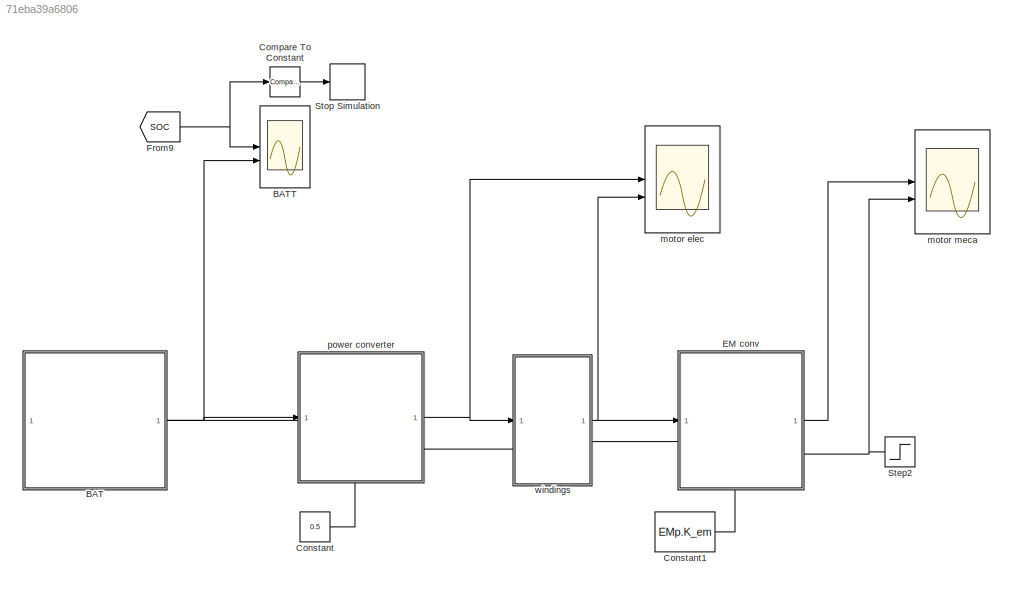
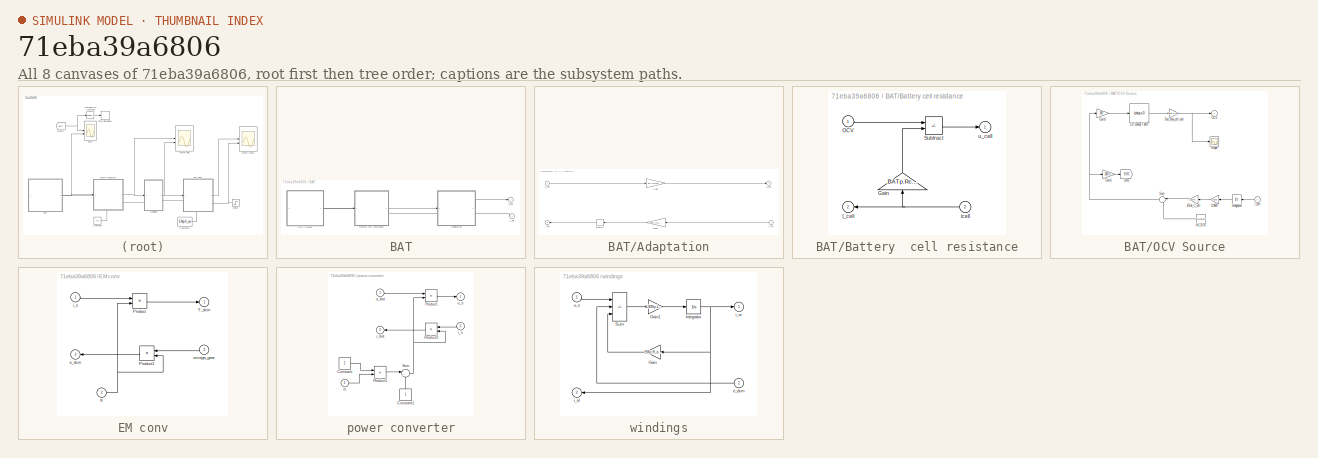
[diagram: thumbnail index - all 8 canvases of the model, root first then tree order]
MODEL slx_71eba39a6806
KIND model
CONFIG AbsTol = auto
CONFIG EnableMultiTasking = on
CONFIG FixedStep = 1e-2
CONFIG InitFcn = init_ev
CONFIG MaxStep = 1e-3
CONFIG MinStep = auto
CONFIG RelTol = 1e-3
CONFIG SampleTimeConstraint = Unconstrained
CONFIG SolverName = ode45
CONFIG StartTime = SIM.t_min
CONFIG StopTime = SIM.t_simul
BLOCK [SubSystem] BAT
  PortSchema = {"entries":[{"content":{"sides":[{"content":{"connectorIds":[]},"type":"ConnectorPlacement.EquallySpacedRectSide","uuid":"f966fbbf-87fd-4eae-ac75-d366ea856ba9"},{"content":{"connectorIds":["Out1","In1"],"side":"RIGHT"},"type":"ConnectorPlacement.EquallySpacedRectSide","uuid":"019a522f-a65b-4de4-928a-6ec503aa07e1"},{"content":{"connectorIds":[],"side":"TOP"},"type":"ConnectorPlacement.EquallySpaced...<+241ch>
BLOCK [SubSystem] BAT/Adaptation
  PortSchema = {"entries":[{"content":{"sides":[{"content":{"connectorIds":["In1","Out2"]},"type":"ConnectorPlacement.EquallySpacedRectSide","uuid":"43b53794-c784-4d35-8a91-f1490638489e"},{"content":{"connectorIds":["Out1","In2"],"side":"RIGHT"},"type":"ConnectorPlacement.EquallySpacedRectSide","uuid":"00b1a1a6-7269-4083-abb9-f1208d9f3b4c"},{"content":{"connectorIds":[],"side":"TOP"},"type":"ConnectorPlacement.E...<+253ch>
BLOCK [Gain] BAT/Adaptation/Gain
  Gain = BATp.ns
BLOCK [Gain] BAT/Adaptation/Gain1
  Gain = 1/BATp.np
  NameLocation = top
BLOCK [Inport] BAT/Adaptation/I_bat
  NameLocation = top
  Port = 2
BLOCK [Memory] BAT/Adaptation/Memory
BLOCK [Outport] BAT/Adaptation/i_cell
  InitialOutput = 0
  NameLocation = top
  Port = 2
BLOCK [Outport] BAT/Adaptation/u_bat
  InitialOutput = 0
BLOCK [Inport] BAT/Adaptation/u_cell
BLOCK [SubSystem] BAT/Battery  cell resistance
  PortSchema = {"entries":[{"content":{"sides":[{"content":{"connectorIds":["In1","Out2"]},"type":"ConnectorPlacement.EquallySpacedRectSide","uuid":"43b53794-c784-4d35-8a91-f1490638489e"},{"content":{"connectorIds":["Out1","In2"],"side":"RIGHT"},"type":"ConnectorPlacement.EquallySpacedRectSide","uuid":"00b1a1a6-7269-4083-abb9-f1208d9f3b4c"},{"content":{"connectorIds":[],"side":"TOP"},"type":"ConnectorPlacement.E...<+253ch>
BLOCK [Gain] BAT/Battery  cell resistance/Gain
  Gain = BATp.Rcell
  NameLocation = right
BLOCK [Outport] BAT/Battery  cell resistance/I_cell
  InitialOutput = 0
  NameLocation = top
  Port = 2
BLOCK [Inport] BAT/Battery  cell resistance/OCV
BLOCK [Sum] BAT/Battery  cell resistance/Subtract
  IconShape = rectangular
  Inputs = +-
BLOCK [Inport] BAT/Battery  cell resistance/icell
  NameLocation = top
  Port = 2
BLOCK [Outport] BAT/Battery  cell resistance/u_cell
  InitialOutput = 0
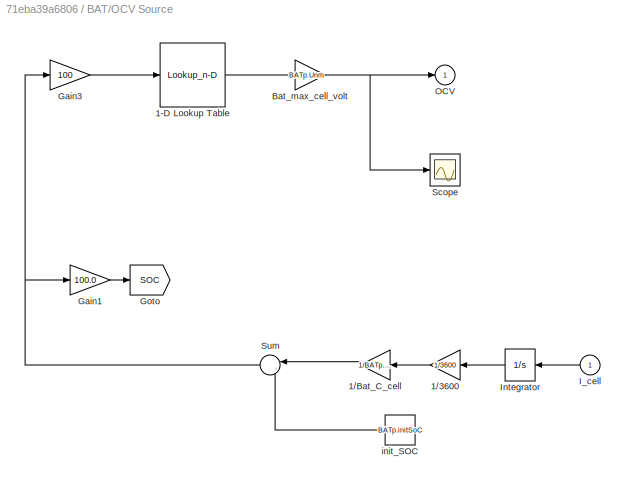
BLOCK [SubSystem] BAT/OCV Source
  PortSchema = {"entries":[{"content":{"sides":[{"content":{"connectorIds":[]},"type":"ConnectorPlacement.EquallySpacedRectSide","uuid":"87b7c904-bcc3-4a98-87e1-6b58a76e8897"},{"content":{"connectorIds":["Out1","In1"],"side":"RIGHT"},"type":"ConnectorPlacement.EquallySpacedRectSide","uuid":"67c0e4e9-ec6a-4f26-b099-e0fb0eaa0b35"},{"content":{"connectorIds":[],"side":"TOP"},"type":"ConnectorPlacement.EquallySpaced...<+241ch>
BLOCK [Lookup_n-D] BAT/OCV Source/1-D Lookup Table
  BreakpointsForDimension1 = BATp.SoC
  InputPortMap = u0
  InternalRulePriority = Speed
  NumberOfTableDimensions = 1
  RndMeth = Simplest
  Table = BATp.OCV
BLOCK [Gain] BAT/OCV Source/1//3600
  Gain = 1/3600
  NameLocation = top
BLOCK [Gain] BAT/OCV Source/1//Bat_C_cell
  Gain = 1/BATp.Ccell
  NameLocation = top
BLOCK [Gain] BAT/OCV Source/Bat_max_cell_volt
  Gain = BATp.Unm
  NameLocation = top
BLOCK [Gain] BAT/OCV Source/Gain1
  Gain = 100.0
BLOCK [Gain] BAT/OCV Source/Gain3
  Gain = 100
BLOCK [Goto] BAT/OCV Source/Goto
  GotoTag = SOC
  TagVisibility = global
BLOCK [Inport] BAT/OCV Source/I_cell 
  NameLocation = top
BLOCK [Integrator] BAT/OCV Source/Integrator
  NameLocation = top
BLOCK [Outport] BAT/OCV Source/OCV
  InitialOutput = 0
BLOCK [Scope] BAT/OCV Source/Scope
  ActiveDisplayYMaximum = 4.35082
  ActiveDisplayYMinimum = 2.54261
  DataLoggingVariableName = ScopeData1
  Floating = off
  GraphicalSettings = {"GraphicalSettings":{"LegacySettings":true,"Style":{"Style":{"AxesColor":"[0 0 0]","ChannelNames":[""],"ColorOrder":"[1 0.909803921568627 0.392156862745098;0.149019607843137 0.549019607843137 0.866666666666667;0.96078431372549 0.466666666666667 0.16078431372549;0.286274509803922 0.858823529411765 0.250980392156863;0.752941176470588 0.36078431372549 0.984313725490196;0.423529411764706 0.9568627450...<+457ch>
  MultipleDisplayCache = [{"MaxYLimMag":4.35082,"MaxYLimReal":4.35082,"MinYLimMag":2.54261,"MinYLimReal":2.54261,"PlotAsMagnitudePhase":false,"ShowGrid":true,"ShowLegend":false,"Title":"%<SignalLabel>","YLabel":""}]
  NumInputPorts = 1
  WasSavedAsWebScope = on
BLOCK [Sum] BAT/OCV Source/Sum
  Inputs = |-+
  NameLocation = top
BLOCK [Constant] BAT/OCV Source/init_SOC
  NameLocation = top
  Value = BATp.initSoC
BLOCK [Inport] BAT/i_bat
  NameLocation = top
BLOCK [Outport] BAT/u_bat
  InitialOutput = 0
  NameLocation = top
BLOCK [Scope] BATT
  ActiveDisplayYMaximum = 100.02634
  ActiveDisplayYMinimum = 99.76293
  DataLoggingDecimateData = on
  DataLoggingDecimation = 1
  DataLoggingSaveFormat = Structure With Time
  DataLoggingVariableName = ScopeData1
  Floating = off
  GraphicalSettings = {"GraphicalSettings":{"LegacySettings":true,"Style":{"AxesScalingProperties":{"ScaleAxesLimitsAtStop":false},"Style":{"AxesColor":"[0 0 0]","ChannelNames":["","",""],"ColorOrder":"[1 0.909803921568627 0.392156862745098;0.149019607843137 0.549019607843137 0.866666666666667;0.96078431372549 0.466666666666667 0.16078431372549;0.286274509803922 0.858823529411765 0.250980392156863;0.752941176470588 0.3...<+1784ch>
  LayoutDimensionsString = [3 1]
  MultipleDisplayCache = [{"MaxYLimMag":100.02634,"MaxYLimReal":100.02634,"MinYLimMag":99.76293,"MinYLimReal":99.76293,"PlotAsMagnitudePhase":false,"ShowGrid":true,"ShowLegend":false,"Title":"SOC","YLabel":""},{"MaxYLimMag":542.91708,"MaxYLimReal":400.45668411148597,"MinYLimMag":0,"MinYLimReal":400.11673334578154,"PlotAsMagnitudePhase":false,"ShowGrid":true,"ShowLegend":false,"Title":"Ubatt (V)","YLabel":""},{"MaxYLimMag"...<+169ch>
  NumInputPorts = 2
  ScopeFrameLocation = window
  Title = SOC
  WasSavedAsWebScope = on
  WindowPosition = [1.000000,1.000000,1920.000000,891.000000,]
BLOCK [Reference] Compare To Constant  REF=simulink/Logic and Bit
Operations/Compare
To Constant
  SourceBlock = simulink/Logic and Bit\nOperations/Compare\nTo Constant
  SourceType = Compare To Constant
BLOCK [Constant] Constant
  Value = 0.5
BLOCK [Constant] Constant1
  Value = EMp.K_em
BLOCK [SubSystem] EM conv
  NameLocation = top
  PortSchema = {"entries":[{"content":{"sides":[{"content":{"connectorIds":["In1","Out2"]},"type":"ConnectorPlacement.EquallySpacedRectSide","uuid":"61fbc010-38ff-4a80-98f4-f5d8a9e77fd8"},{"content":{"connectorIds":["Out1","In3"],"side":"RIGHT"},"type":"ConnectorPlacement.EquallySpacedRectSide","uuid":"7ae9e15d-ee0f-4ba6-b3b7-5dcbca441e0a"},{"content":{"connectorIds":[],"side":"TOP"},"type":"ConnectorPlacement.E...<+402ch>
BLOCK [Inport] EM conv/K
  Port = 2
BLOCK [Product] EM conv/Product
BLOCK [Product] EM conv/Product1
BLOCK [Outport] EM conv/T_dcm
  InitialOutput = 0
BLOCK [Outport] EM conv/e_dcm
  InitialOutput = 0
  Port = 2
BLOCK [Inport] EM conv/i_s
BLOCK [Inport] EM conv/omega_gear
  Port = 3
BLOCK [From] From9
  GotoTag = SOC
  TagVisibility = global
BLOCK [Step] Step2
  After = 400*2*pi/60
  Before = 500*2*pi/60
  NameLocation = top
  SampleTime = 0
  Time = 75
BLOCK [Stop] Stop Simulation
BLOCK [Scope] motor elec
  ActiveDisplayYMaximum = 0.23301388415574203
  ActiveDisplayYMinimum = -0.080060453705717141
  Floating = off
  GraphicalSettings = {"Style":{"BackgroundColor":[0.12941176470588237,0.12941176470588237,0.12941176470588237],"AxesColor":[0.07058823529411765,0.07058823529411765,0.07058823529411765],"LabelsColor":[0.8509803921568627,0.8509803921568627,0.8509803921568627],"PreserveColors":false,"Visible":[true,true],"LineStyle":["-","-"],"LineWidth":[1.5,1.5],"BarWidth":[0.9,0.9],"LineColor":["auto","auto"],"LineFaceAlpha":[1,1],"Li...<+2429ch>
  LayoutDimensionsString = [2,1]
  MultipleDisplayCache = [{"MaxYLimMag":10,"MaxYLimReal":0.23301388415574203,"MinYLimMag":0,"MinYLimReal":-0.080060453705717141,"PlotAsMagnitudePhase":false,"ShowGrid":true,"ShowLegend":false,"Title":"%<SignalLabel>","YLabel":"u_s (V)"},{"MaxYLimMag":10,"MaxYLimReal":12.04932897469746,"MinYLimMag":0,"MinYLimReal":-1507.2728582341026,"PlotAsMagnitudePhase":false,"ShowGrid":true,"ShowLegend":false,"Title":"%<SignalLabel>","...<+19ch>
  NumInputPorts = 2
  ScopeFrameLocation = window
  ShowTimeAxisLabel = on
  TimeUnits = Seconds
  WasSavedAsWebScope = on
  WindowPosition = [126.000000,141.000000,805.000000,656.000000,]
  YLabel = u_s (V)
BLOCK [Scope] motor meca
  ActiveDisplayString = 2
  ActiveDisplayYMaximum = 230.58226400155891
  ActiveDisplayYMinimum = -227.26848450092217
  DataLoggingVariableName = ScopeData3
  Floating = off
  GraphicalSettings = {"Style":{"BackgroundColor":[0.12941176470588237,0.12941176470588237,0.12941176470588237],"AxesColor":[0.07058823529411765,0.07058823529411765,0.07058823529411765],"LabelsColor":[0.8509803921568627,0.8509803921568627,0.8509803921568627],"PreserveColors":false,"Visible":[true,true],"LineStyle":["-","-"],"LineWidth":[1.5,1.5],"BarWidth":[0.9,0.9],"LineColor":["auto","auto"],"LineFaceAlpha":[1,1],"Li...<+2486ch>
  LayoutDimensionsString = [2,1]
  MultipleDisplayCache = [{"MaxYLimMag":1369.7717968776265,"MaxYLimReal":437.14338221358764,"MinYLimMag":0,"MinYLimReal":-1588.0538600723335,"PlotAsMagnitudePhase":false,"ShowGrid":true,"ShowLegend":false,"Title":"%<SignalLabel>","YLabel":"T_{dcm} (Nm)"},{"MaxYLimMag":1369.7717968776265,"MaxYLimReal":230.58226400155891,"MinYLimMag":0,"MinYLimReal":-227.26848450092217,"PlotAsMagnitudePhase":false,"ShowGrid":true,"ShowLegen...<+71ch>
  NumInputPorts = 2
  ScopeFrameLocation = window
  ShowTimeAxisLabel = on
  TimeUnits = Seconds
  WasSavedAsWebScope = on
  WindowPosition = [638.000000,155.000000,561.000000,421.000000,]
  YLabel = \Omega_{gear} (rad/s))
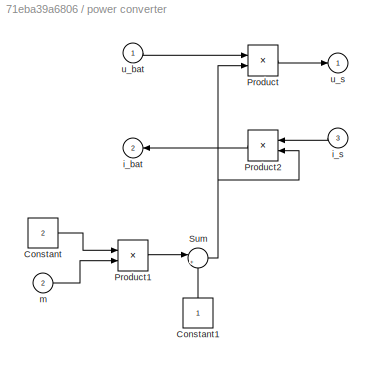
BLOCK [SubSystem] power converter
  NameLocation = top
  PortSchema = {"entries":[{"content":{"sides":[{"content":{"connectorIds":["In1","Out2"]},"type":"ConnectorPlacement.EquallySpacedRectSide","uuid":"62d3361f-f49a-4a89-b7fa-c77fcee42868"},{"content":{"connectorIds":["Out1","In3"],"side":"RIGHT"},"type":"ConnectorPlacement.EquallySpacedRectSide","uuid":"da99363c-611b-4582-b369-34120805217f"},{"content":{"side":"TOP"},"type":"ConnectorPlacement.EquallySpacedRectSi...<+384ch>
BLOCK [Constant] power converter/Constant
  Value = 2
BLOCK [Constant] power converter/Constant1
  NameLocation = right
BLOCK [Product] power converter/Product
BLOCK [Product] power converter/Product1
BLOCK [Product] power converter/Product2
BLOCK [Sum] power converter/Sum
  Inputs = |+-
BLOCK [Outport] power converter/i_bat
  InitialOutput = 0
  NameLocation = top
  Port = 2
BLOCK [Inport] power converter/i_s
  Port = 3
BLOCK [Inport] power converter/m
  Port = 2
BLOCK [Inport] power converter/u_bat
BLOCK [Outport] power converter/u_s
  InitialOutput = 0
  NameLocation = top
BLOCK [SubSystem] windings
  NameLocation = top
  PortSchema = {"entries":[{"content":{"sides":[{"content":{"connectorIds":["In1","Out2"]},"type":"ConnectorPlacement.EquallySpacedRectSide","uuid":"620ffb90-6f06-474c-af56-4865758ad724"},{"content":{"connectorIds":["Out1","In2"],"side":"RIGHT"},"type":"ConnectorPlacement.EquallySpacedRectSide","uuid":"7a4bba18-9bee-4c5d-b60c-6ae6fbfa3157"},{"content":{"connectorIds":[],"side":"TOP"},"type":"ConnectorPlacement.E...<+253ch>
BLOCK [Gain] windings/Gain
  Gain = EMp.R_arm
BLOCK [Gain] windings/Gain1
  Gain = 1/EMp.L_arm
BLOCK [Integrator] windings/Integrator
BLOCK [Sum] windings/Sum
  IconShape = rectangular
  Inputs = +--
BLOCK [Inport] windings/e_dcm
  Port = 2
BLOCK [Outport] windings/i_sl
  InitialOutput = 0
  Port = 2
BLOCK [Outport] windings/i_sr
  InitialOutput = 0
BLOCK [Inport] windings/u_s
LINE BAT/Adaptation/Gain1:1 -> BAT/Adaptation/Memory:1
LINE BAT/Adaptation/Gain:1 -> BAT/Adaptation/u_bat:1
LINE BAT/Adaptation/I_bat:1 -> BAT/Adaptation/Gain1:1
LINE BAT/Adaptation/Memory:1 -> BAT/Adaptation/i_cell:1
LINE BAT/Adaptation/u_cell:1 -> BAT/Adaptation/Gain:1
LINE BAT/Adaptation:1 -> BAT/u_bat:1
LINE BAT/Adaptation:2 -> BAT/Battery  cell resistance:2
LINE BAT/Battery  cell resistance/Gain:1 -> BAT/Battery  cell resistance/Subtract:2
LINE BAT/Battery  cell resistance/OCV:1 -> BAT/Battery  cell resistance/Subtract:1
LINE BAT/Battery  cell resistance/Subtract:1 -> BAT/Battery  cell resistance/u_cell:1
NET BAT/Battery  cell resistance/icell:1 -> BAT/Battery  cell resistance/Gain:1, BAT/Battery  cell resistance/I_cell:1
LINE BAT/Battery  cell resistance:1 -> BAT/Adaptation:1
LINE BAT/Battery  cell resistance:2 -> BAT/OCV Source:1
LINE BAT/OCV Source/1-D Lookup Table:1 -> BAT/OCV Source/Bat_max_cell_volt:1
LINE BAT/OCV Source/1//3600:1 -> BAT/OCV Source/1//Bat_C_cell:1
LINE BAT/OCV Source/1//Bat_C_cell:1 -> BAT/OCV Source/Sum:1
NET BAT/OCV Source/Bat_max_cell_volt:1 -> BAT/OCV Source/OCV:1, BAT/OCV Source/Scope:1
LINE BAT/OCV Source/Gain1:1 -> BAT/OCV Source/Goto:1
LINE BAT/OCV Source/Gain3:1 -> BAT/OCV Source/1-D Lookup Table:1
LINE BAT/OCV Source/I_cell :1 -> BAT/OCV Source/Integrator:1
LINE BAT/OCV Source/Integrator:1 -> BAT/OCV Source/1//3600:1
NET BAT/OCV Source/Sum:1 -> BAT/OCV Source/Gain1:1, BAT/OCV Source/Gain3:1
LINE BAT/OCV Source/init_SOC:1 -> BAT/OCV Source/Sum:2
LINE BAT/OCV Source:1 -> BAT/Battery  cell resistance:1
LINE BAT/i_bat:1 -> BAT/Adaptation:2
NET BAT:1 -> BATT:2, power converter:1
LINE Compare To Constant:1 -> Stop Simulation:1
LINE Constant1:1 -> EM conv:2
LINE Constant:1 -> power converter:2
NET EM conv/K:1 -> EM conv/Product1:2, EM conv/Product:2
LINE EM conv/Product1:1 -> EM conv/e_dcm:1
LINE EM conv/Product:1 -> EM conv/T_dcm:1
LINE EM conv/i_s:1 -> EM conv/Product:1
LINE EM conv/omega_gear:1 -> EM conv/Product1:1
LINE EM conv:1 -> motor meca:1
LINE EM conv:2 -> windings:2
NET From9:1 -> BATT:1, Compare To Constant:1
NET Step2:1 -> EM conv:3, motor meca:2
LINE power converter/Constant1:1 -> power converter/Sum:2
LINE power converter/Constant:1 -> power converter/Product1:1
LINE power converter/Product1:1 -> power converter/Sum:1
LINE power converter/Product2:1 -> power converter/i_bat:1
LINE power converter/Product:1 -> power converter/u_s:1
NET power converter/Sum:1 -> power converter/Product2:2, power converter/Product:2
LINE power converter/i_s:1 -> power converter/Product2:1
LINE power converter/m:1 -> power converter/Product1:2
LINE power converter/u_bat:1 -> power converter/Product:1
NET power converter:1 -> motor elec:1, windings:1
LINE power converter:2 -> BAT:1
LINE windings/Gain1:1 -> windings/Integrator:1
LINE windings/Gain:1 -> windings/Sum:3
NET windings/Integrator:1 -> windings/Gain:1, windings/i_sl:1, windings/i_sr:1
LINE windings/Sum:1 -> windings/Gain1:1
LINE windings/e_dcm:1 -> windings/Sum:2
LINE windings/u_s:1 -> windings/Sum:1
NET windings:1 -> EM conv:1, motor elec:2
LINE windings:2 -> power converter:3
note: NET lines group one-source signal fan-out (src -> all destinations, sorted); 1:1 wires keep LINE
